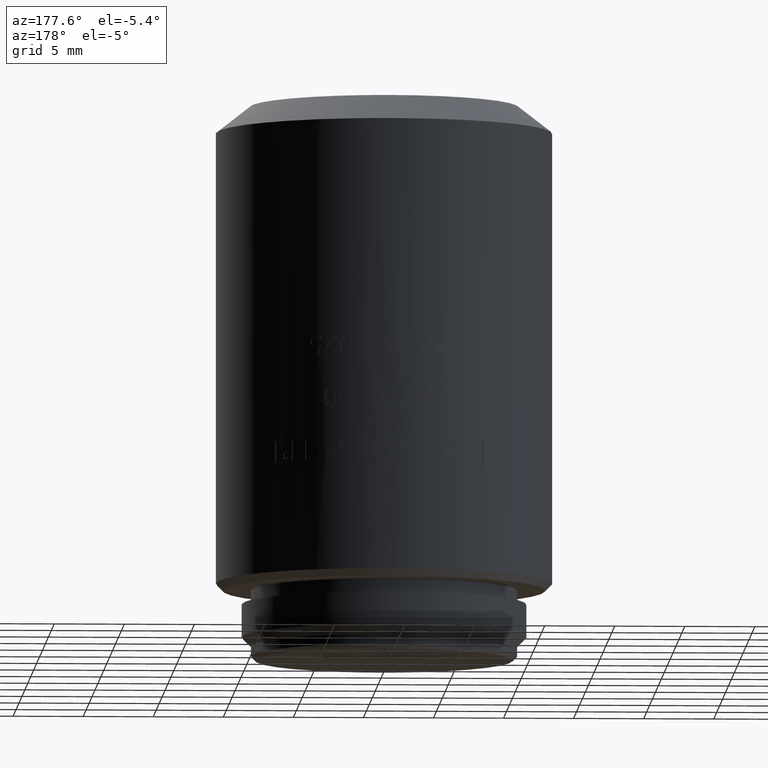
[diagram: clean part render]
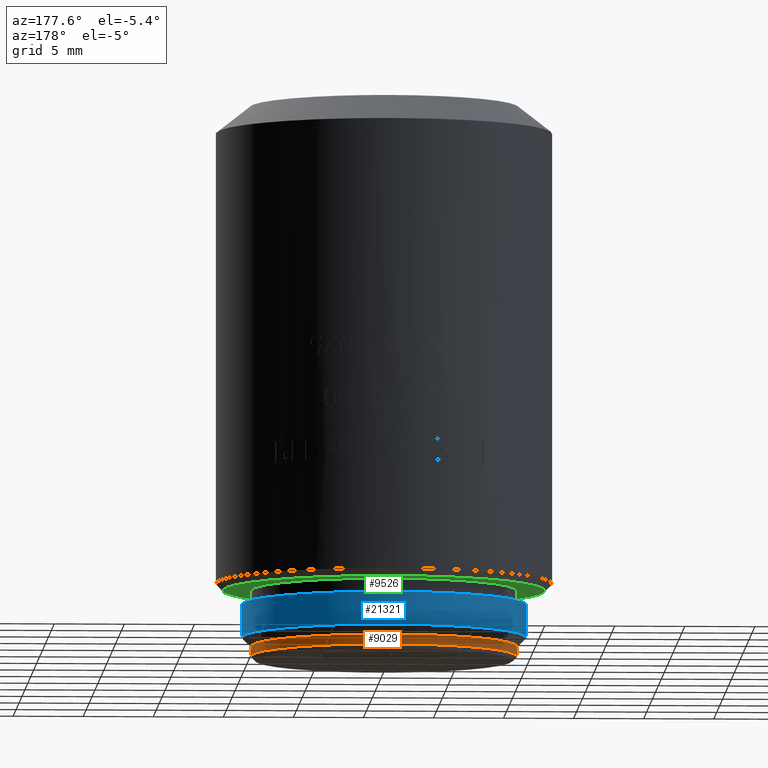
[diagram: same view with three faces highlighted in distinct colors, each labeled with its STEP entity id]
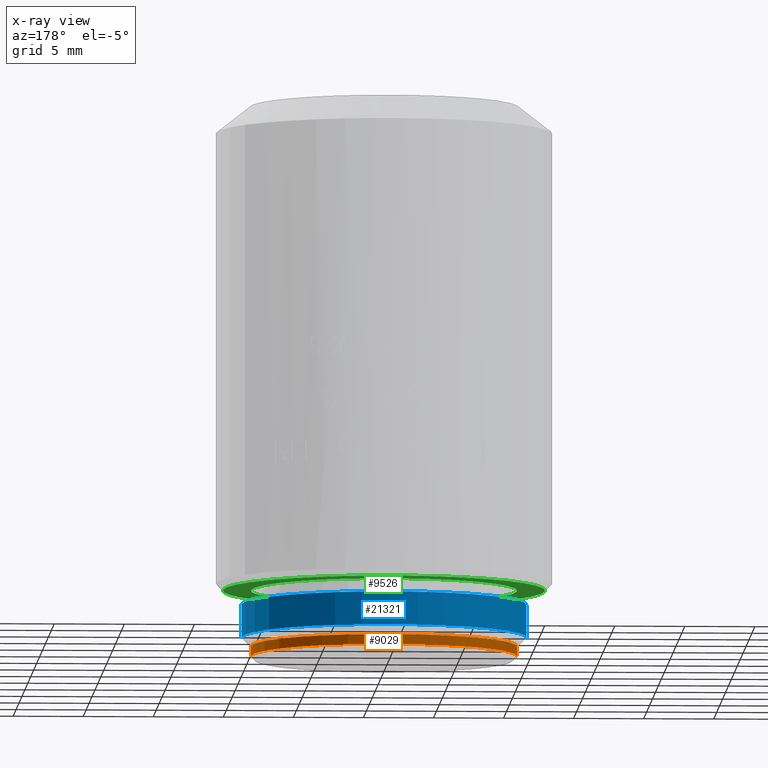
[diagram: x-ray of the same camera — body ghosted, the three highlighted faces saturated]
A machine part, auxiliary view with three faces highlighted in distinct colors.
The next image is the same camera in x-ray (body ghosted, the three faces saturated) — at least one of them is partly hidden behind the body in this view.
Their STEP definitions:

[orange] entity #9029 — the highlighted cylindrical surface (partial cylindrical patch) has radius 9.5 mm, axis along (0, 0, -1).
#905 = CARTESIAN_POINT ( 'NONE',  ( 0.000000000000000000, 0.000000000000000000, 0.3000000000000069833 ) ) ;
#1038 = AXIS2_PLACEMENT_3D ( 'NONE', #19158, #2152, #17281 ) ;
#2152 = DIRECTION ( 'NONE',  ( 0.000000000000000000, 0.000000000000000000, -1.000000000000000000 ) ) ;
#2538 = CARTESIAN_POINT ( 'NONE',  ( -9.500000000000007105, 1.163414459189986274E-15, 0.3000000000000069833 ) ) ;
#2919 = DIRECTION ( 'NONE',  ( 0.000000000000000000, 0.000000000000000000, -1.000000000000000000 ) ) ;
#3096 = VERTEX_POINT ( 'NONE', #2538 ) ;
#3737 = VERTEX_POINT ( 'NONE', #22489 ) ;
#3942 = ORIENTED_EDGE ( 'NONE', *, *, #22424, .F. ) ;
#5228 = EDGE_CURVE ( 'NONE', #17534, #3737, #8547, .T. ) ;
#5472 = ORIENTED_EDGE ( 'NONE', *, *, #10285, .T. ) ;
#5489 = EDGE_LOOP ( 'NONE', ( #8293, #9373, #5472, #3942 ) ) ;
#6529 = FACE_OUTER_BOUND ( 'NONE', #5489, .T. ) ;
#7995 = VECTOR ( 'NONE', #2919, 1000.000000000000000 ) ;
#8205 = DIRECTION ( 'NONE',  ( 0.000000000000000000, 0.000000000000000000, -1.000000000000000000 ) ) ;
#8293 = ORIENTED_EDGE ( 'NONE', *, *, #5228, .T. ) ;
#8455 = DIRECTION ( 'NONE',  ( 0.000000000000000000, 0.000000000000000000, 1.000000000000000000 ) ) ;
#8547 = CIRCLE ( 'NONE', #1038, 9.500000000000000000 ) ;
#9029 = ADVANCED_FACE ( 'NONE', ( #6529 ), #10021, .T. ) ;
#9373 = ORIENTED_EDGE ( 'NONE', *, *, #22870, .T. ) ;
#10021 = CYLINDRICAL_SURFACE ( 'NONE', #10113, 9.500000000000000000 ) ;
#10072 = CARTESIAN_POINT ( 'NONE',  ( -9.500000000000000000, 0.000000000000000000, 1.000000000000000000 ) ) ;
#10113 = AXIS2_PLACEMENT_3D ( 'NONE', #13858, #17577, #17700 ) ;
#10285 = EDGE_CURVE ( 'NONE', #10620, #3096, #21707, .T. ) ;
#10368 = CARTESIAN_POINT ( 'NONE',  ( 9.500000000000000000, 1.163414459189985485E-15, 1.000000000000000000 ) ) ;
#10620 = VERTEX_POINT ( 'NONE', #19103 ) ;
#12346 = LINE ( 'NONE', #10368, #7995 ) ;
#13858 = CARTESIAN_POINT ( 'NONE',  ( 0.000000000000000000, 0.000000000000000000, 1.000000000000000000 ) ) ;
#15768 = CARTESIAN_POINT ( 'NONE',  ( -9.500000000000000000, 0.000000000000000000, 1.000000000000000000 ) ) ;
#16966 = AXIS2_PLACEMENT_3D ( 'NONE', #905, #8455, #19995 ) ;
#17281 = DIRECTION ( 'NONE',  ( -1.000000000000000000, 0.000000000000000000, 0.000000000000000000 ) ) ;
#17534 = VERTEX_POINT ( 'NONE', #15768 ) ;
#17577 = DIRECTION ( 'NONE',  ( 0.000000000000000000, 0.000000000000000000, -1.000000000000000000 ) ) ;
#17700 = DIRECTION ( 'NONE',  ( -1.000000000000000000, 0.000000000000000000, 0.000000000000000000 ) ) ;
#19103 = CARTESIAN_POINT ( 'NONE',  ( 9.500000000000007105, 0.000000000000000000, 0.3000000000000069833 ) ) ;
#19158 = CARTESIAN_POINT ( 'NONE',  ( 0.000000000000000000, 0.000000000000000000, 1.000000000000000000 ) ) ;
#19555 = VECTOR ( 'NONE', #8205, 1000.000000000000000 ) ;
#19742 = LINE ( 'NONE', #10072, #19555 ) ;
#19995 = DIRECTION ( 'NONE',  ( 1.000000000000000000, 0.000000000000000000, 0.000000000000000000 ) ) ;
#21707 = CIRCLE ( 'NONE', #16966, 9.500000000000000000 ) ;
#22424 = EDGE_CURVE ( 'NONE', #17534, #3096, #19742, .T. ) ;
#22489 = CARTESIAN_POINT ( 'NONE',  ( 9.500000000000000000, 1.163414459189985485E-15, 1.000000000000000000 ) ) ;
#22870 = EDGE_CURVE ( 'NONE', #3737, #10620, #12346, .T. ) ;

[blue] entity #21321 — the highlighted cylindrical surface (partial cylindrical patch) has radius 10.16 mm, axis along (0, 0, -1).
#1220 = ORIENTED_EDGE ( 'NONE', *, *, #21819, .F. ) ;
#1272 = CARTESIAN_POINT ( 'NONE',  ( 0.000000000000000000, 0.000000000000000000, 5.000000000000000000 ) ) ;
#1444 = EDGE_CURVE ( 'NONE', #21229, #6944, #12136, .T. ) ;
#1746 = DIRECTION ( 'NONE',  ( -1.000000000000000000, 0.000000000000000000, 0.000000000000000000 ) ) ;
#4348 = ORIENTED_EDGE ( 'NONE', *, *, #1444, .T. ) ;
#5181 = CARTESIAN_POINT ( 'NONE',  ( -10.16000000000000014, 0.000000000000000000, 4.000000000000000000 ) ) ;
#5466 = CARTESIAN_POINT ( 'NONE',  ( 0.000000000000000000, 0.000000000000000000, 4.000000000000000000 ) ) ;
#6245 = CIRCLE ( 'NONE', #20112, 10.16000000000000014 ) ;
#6944 = VERTEX_POINT ( 'NONE', #21840 ) ;
#6963 = CARTESIAN_POINT ( 'NONE',  ( 10.16000000000000014, 1.244241147933710864E-15, 4.000000000000000000 ) ) ;
#7012 = AXIS2_PLACEMENT_3D ( 'NONE', #1272, #7093, #8827 ) ;
#7093 = DIRECTION ( 'NONE',  ( 0.000000000000000000, 0.000000000000000000, -1.000000000000000000 ) ) ;
#7894 = ORIENTED_EDGE ( 'NONE', *, *, #13400, .F. ) ;
#8155 = CARTESIAN_POINT ( 'NONE',  ( 0.000000000000000000, 0.000000000000000000, 1.649999999999999911 ) ) ;
#8827 = DIRECTION ( 'NONE',  ( -1.000000000000000000, 0.000000000000000000, 0.000000000000000000 ) ) ;
#9423 = CIRCLE ( 'NONE', #20906, 10.16000000000000014 ) ;
#9922 = CARTESIAN_POINT ( 'NONE',  ( 10.16000000000000014, 1.244241147933710864E-15, 5.000000000000000000 ) ) ;
#10379 = VECTOR ( 'NONE', #17723, 1000.000000000000000 ) ;
#10637 = VECTOR ( 'NONE', #21109, 1000.000000000000000 ) ;
#12136 = LINE ( 'NONE', #9922, #10379 ) ;
#13400 = EDGE_CURVE ( 'NONE', #20452, #13448, #23237, .T. ) ;
#13448 = VERTEX_POINT ( 'NONE', #22658 ) ;
#14548 = FACE_OUTER_BOUND ( 'NONE', #16556, .T. ) ;
#14765 = DIRECTION ( 'NONE',  ( 0.000000000000000000, 0.000000000000000000, 1.000000000000000000 ) ) ;
#15732 = DIRECTION ( 'NONE',  ( -1.000000000000000000, 0.000000000000000000, 0.000000000000000000 ) ) ;
#16124 = ORIENTED_EDGE ( 'NONE', *, *, #21746, .T. ) ;
#16556 = EDGE_LOOP ( 'NONE', ( #1220, #4348, #16124, #7894 ) ) ;
#17140 = CARTESIAN_POINT ( 'NONE',  ( -10.16000000000000014, 0.000000000000000000, 5.000000000000000000 ) ) ;
#17723 = DIRECTION ( 'NONE',  ( 0.000000000000000000, 0.000000000000000000, -1.000000000000000000 ) ) ;
#20112 = AXIS2_PLACEMENT_3D ( 'NONE', #8155, #21065, #15732 ) ;
#20452 = VERTEX_POINT ( 'NONE', #5181 ) ;
#20906 = AXIS2_PLACEMENT_3D ( 'NONE', #5466, #14765, #1746 ) ;
#21065 = DIRECTION ( 'NONE',  ( 0.000000000000000000, 0.000000000000000000, 1.000000000000000000 ) ) ;
#21109 = DIRECTION ( 'NONE',  ( 0.000000000000000000, 0.000000000000000000, -1.000000000000000000 ) ) ;
#21229 = VERTEX_POINT ( 'NONE', #6963 ) ;
#21321 = ADVANCED_FACE ( 'NONE', ( #14548 ), #23993, .T. ) ;
#21746 = EDGE_CURVE ( 'NONE', #6944, #13448, #6245, .T. ) ;
#21819 = EDGE_CURVE ( 'NONE', #21229, #20452, #9423, .T. ) ;
#21840 = CARTESIAN_POINT ( 'NONE',  ( 10.16000000000000014, 0.000000000000000000, 1.649999999999999911 ) ) ;
#22658 = CARTESIAN_POINT ( 'NONE',  ( -10.16000000000000014, 1.244241147933710864E-15, 1.649999999999999911 ) ) ;
#23237 = LINE ( 'NONE', #17140, #10637 ) ;
#23993 = CYLINDRICAL_SURFACE ( 'NONE', #7012, 10.16000000000000014 ) ;

[green] entity #9526 — the highlighted planar face has unit normal (0, 0, -1).
#240 = DIRECTION ( 'NONE',  ( 0.000000000000000000, 0.000000000000000000, -1.000000000000000000 ) ) ;
#304 = EDGE_LOOP ( 'NONE', ( #1592, #8566 ) ) ;
#672 = DIRECTION ( 'NONE',  ( -1.000000000000000000, 0.000000000000000000, 0.000000000000000000 ) ) ;
#1327 = FACE_BOUND ( 'NONE', #304, .T. ) ;
#1592 = ORIENTED_EDGE ( 'NONE', *, *, #13300, .F. ) ;
#2173 = DIRECTION ( 'NONE',  ( -1.000000000000000000, 0.000000000000000000, 0.000000000000000000 ) ) ;
#3140 = ORIENTED_EDGE ( 'NONE', *, *, #17962, .T. ) ;
#3298 = CARTESIAN_POINT ( 'NONE',  ( 0.000000000000000000, 0.000000000000000000, 5.000000000000000000 ) ) ;
#3468 = CIRCLE ( 'NONE', #12976, 9.500000000000000000 ) ;
#3619 = CARTESIAN_POINT ( 'NONE',  ( 0.000000000000000000, 0.000000000000000000, 5.000000000000000000 ) ) ;
#3651 = VERTEX_POINT ( 'NONE', #14534 ) ;
#4286 = AXIS2_PLACEMENT_3D ( 'NONE', #3619, #16895, #6091 ) ;
#4740 = DIRECTION ( 'NONE',  ( 0.000000000000000000, 0.000000000000000000, -1.000000000000000000 ) ) ;
#5655 = DIRECTION ( 'NONE',  ( 0.000000000000000000, 0.000000000000000000, -1.000000000000000000 ) ) ;
#6091 = DIRECTION ( 'NONE',  ( -1.000000000000000000, 0.000000000000000000, 0.000000000000000000 ) ) ;
#6275 = CIRCLE ( 'NONE', #4286, 9.500000000000000000 ) ;
#7018 = EDGE_LOOP ( 'NONE', ( #3140, #10766 ) ) ;
#8566 = ORIENTED_EDGE ( 'NONE', *, *, #21158, .F. ) ;
#9526 = ADVANCED_FACE ( 'NONE', ( #1327, #16327 ), #14969, .T. ) ;
#10492 = AXIS2_PLACEMENT_3D ( 'NONE', #3298, #12980, #18572 ) ;
#10766 = ORIENTED_EDGE ( 'NONE', *, *, #11139, .T. ) ;
#11139 = EDGE_CURVE ( 'NONE', #3651, #16311, #21332, .T. ) ;
#12976 = AXIS2_PLACEMENT_3D ( 'NONE', #21742, #4740, #672 ) ;
#12980 = DIRECTION ( 'NONE',  ( 0.000000000000000000, 0.000000000000000000, -1.000000000000000000 ) ) ;
#13300 = EDGE_CURVE ( 'NONE', #14474, #14617, #6275, .T. ) ;
#13366 = CARTESIAN_POINT ( 'NONE',  ( 9.500000000000000000, 0.000000000000000000, 5.000000000000000000 ) ) ;
#13584 = CARTESIAN_POINT ( 'NONE',  ( 0.000000000000000000, 0.000000000000000000, 5.000000000000000000 ) ) ;
#14474 = VERTEX_POINT ( 'NONE', #13366 ) ;
#14534 = CARTESIAN_POINT ( 'NONE',  ( -11.50000000000000000, 1.438959988998139963E-15, 5.000000000000000000 ) ) ;
#14617 = VERTEX_POINT ( 'NONE', #23425 ) ;
#14969 = PLANE ( 'NONE',  #10492 ) ;
#16311 = VERTEX_POINT ( 'NONE', #22580 ) ;
#16327 = FACE_OUTER_BOUND ( 'NONE', #7018, .T. ) ;
#16895 = DIRECTION ( 'NONE',  ( 0.000000000000000000, 0.000000000000000000, -1.000000000000000000 ) ) ;
#17685 = AXIS2_PLACEMENT_3D ( 'NONE', #19104, #240, #21074 ) ;
#17962 = EDGE_CURVE ( 'NONE', #16311, #3651, #19676, .T. ) ;
#18572 = DIRECTION ( 'NONE',  ( 0.000000000000000000, -1.000000000000000000, 0.000000000000000000 ) ) ;
#19104 = CARTESIAN_POINT ( 'NONE',  ( 0.000000000000000000, 0.000000000000000000, 5.000000000000000000 ) ) ;
#19676 = CIRCLE ( 'NONE', #17685, 11.50000000000000000 ) ;
#21074 = DIRECTION ( 'NONE',  ( -1.000000000000000000, 0.000000000000000000, 0.000000000000000000 ) ) ;
#21158 = EDGE_CURVE ( 'NONE', #14617, #14474, #3468, .T. ) ;
#21332 = CIRCLE ( 'NONE', #22107, 11.50000000000000000 ) ;
#21742 = CARTESIAN_POINT ( 'NONE',  ( 0.000000000000000000, 0.000000000000000000, 5.000000000000000000 ) ) ;
#22107 = AXIS2_PLACEMENT_3D ( 'NONE', #13584, #5655, #2173 ) ;
#22580 = CARTESIAN_POINT ( 'NONE',  ( 11.50000000000000000, 0.000000000000000000, 5.000000000000000000 ) ) ;
#23425 = CARTESIAN_POINT ( 'NONE',  ( -9.500000000000000000, 1.163414459189985485E-15, 5.000000000000000000 ) ) ;